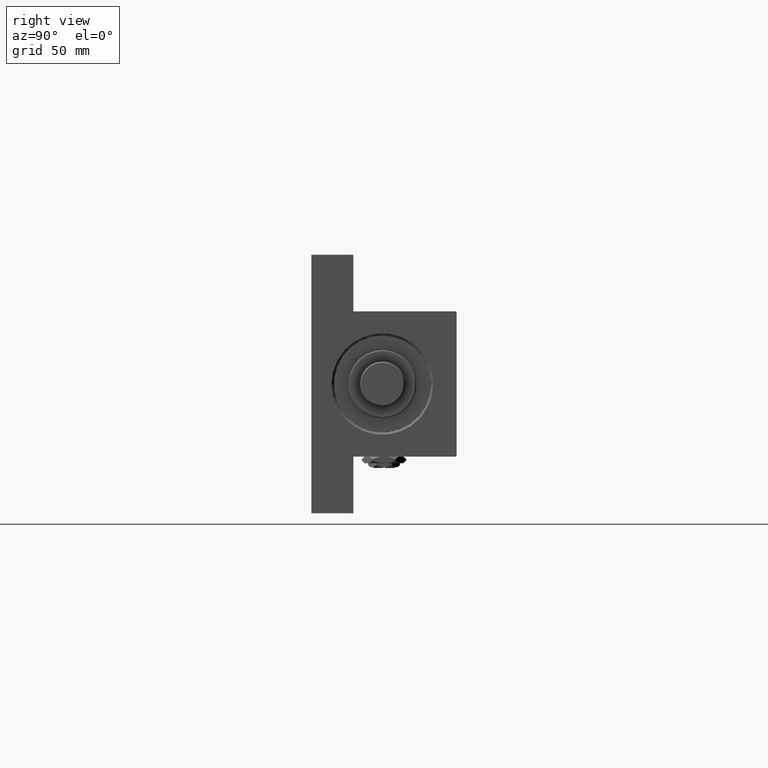
[diagram: clean part render]
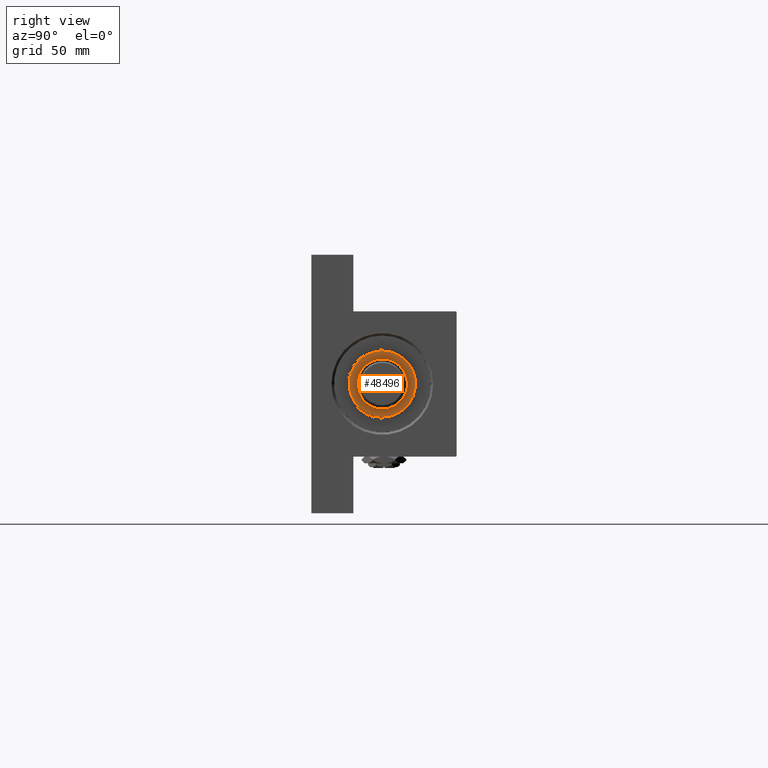
[diagram: same view with one face highlighted and labeled with its STEP entity id]
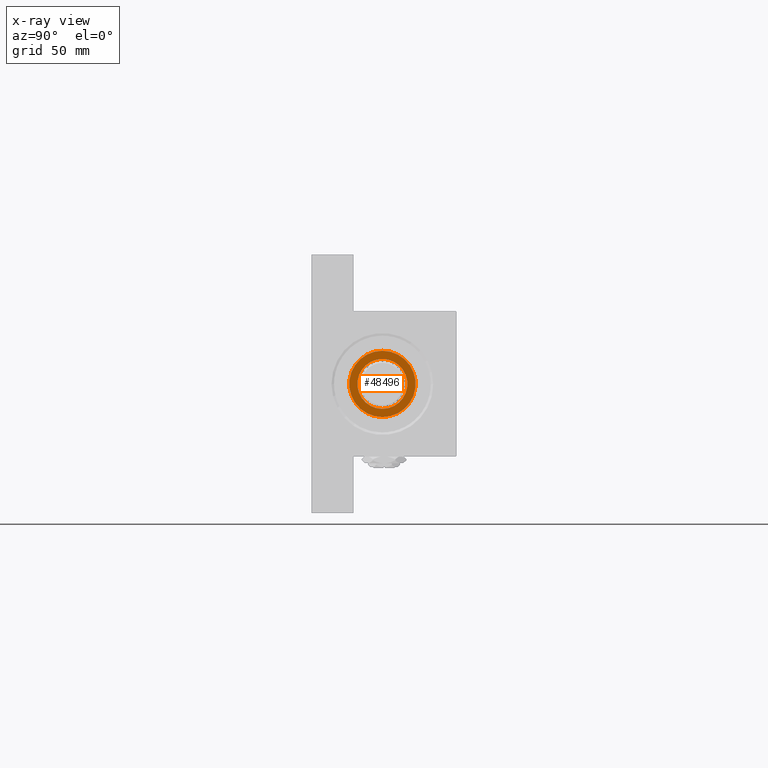
[diagram: x-ray of the same camera — body ghosted, the highlighted face saturated]
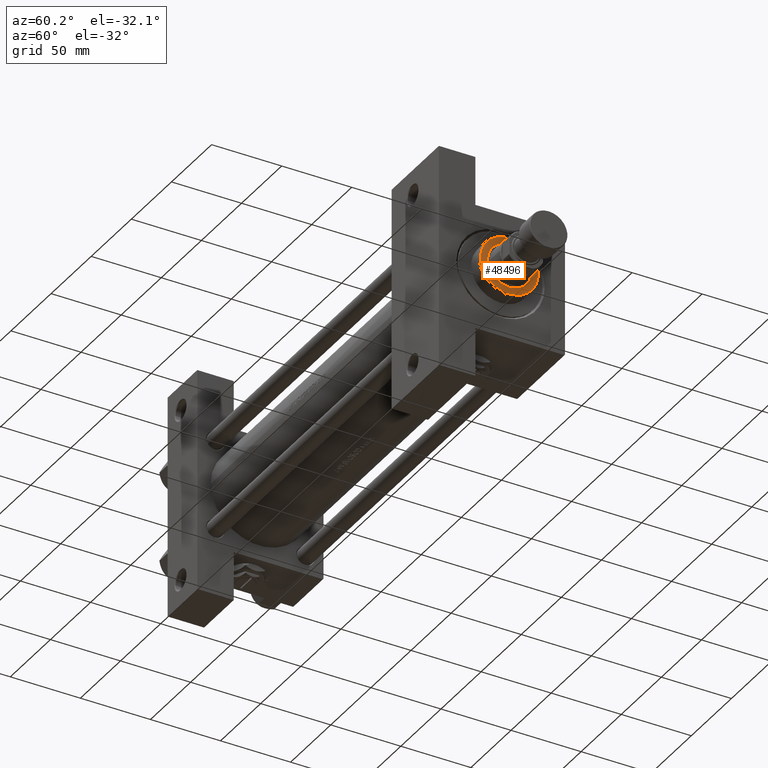
[diagram: same view with one face highlighted and labeled with its STEP entity id]
A machine part, right view. The second image highlights one B-rep face of the part: STEP entity #48496.
The next image is the same camera in x-ray: the body ghosted, the highlighted face saturated — about 0% of this face is hidden behind the body in this view.
A second angle (auxiliary view) of the same face is appended — the face is thin or edge-on in the first view.
In plain terms, the highlighted planar face has unit normal (1, 0, 0).
Its self-contained STEP definition (entity closure, byte-faithful):
#2413 = DIRECTION ( 'NONE',  ( 0.000000000000000000, 0.000000000000000000, 1.000000000000000000 ) ) ;
#4598 = CARTESIAN_POINT ( 'NONE',  ( -15.50000000000000000, 1.898202538678397557E-15, 39.69999999999999574 ) ) ;
#7482 = AXIS2_PLACEMENT_3D ( 'NONE', #21530, #37013, #17487 ) ;
#7998 = CIRCLE ( 'NONE', #43596, 20.50000000000000355 ) ;
#8465 = VERTEX_POINT ( 'NONE', #35496 ) ;
#9046 = DIRECTION ( 'NONE',  ( 0.000000000000000000, 0.000000000000000000, 1.000000000000000000 ) ) ;
#9493 = PLANE ( 'NONE',  #21824 ) ;
#10421 = CIRCLE ( 'NONE', #37134, 15.50000000000000000 ) ;
#13249 = EDGE_CURVE ( 'NONE', #23503, #18032, #10421, .T. ) ;
#13515 = AXIS2_PLACEMENT_3D ( 'NONE', #25245, #9046, #44501 ) ;
#13788 = FACE_BOUND ( 'NONE', #17685, .T. ) ;
#14441 = CARTESIAN_POINT ( 'NONE',  ( 0.000000000000000000, 0.000000000000000000, 39.69999999999999574 ) ) ;
#17487 = DIRECTION ( 'NONE',  ( 1.000000000000000000, 0.000000000000000000, 0.000000000000000000 ) ) ;
#17593 = FACE_OUTER_BOUND ( 'NONE', #23450, .T. ) ;
#17685 = EDGE_LOOP ( 'NONE', ( #31011, #32158 ) ) ;
#18032 = VERTEX_POINT ( 'NONE', #4598 ) ;
#19130 = CARTESIAN_POINT ( 'NONE',  ( -20.50000000000000355, 0.000000000000000000, 39.69999999999999574 ) ) ;
#19812 = VERTEX_POINT ( 'NONE', #19130 ) ;
#20896 = DIRECTION ( 'NONE',  ( 1.000000000000000000, 0.000000000000000000, -0.000000000000000000 ) ) ;
#21323 = EDGE_CURVE ( 'NONE', #19812, #8465, #48729, .T. ) ;
#21530 = CARTESIAN_POINT ( 'NONE',  ( 0.000000000000000000, 0.000000000000000000, 39.69999999999999574 ) ) ;
#21824 = AXIS2_PLACEMENT_3D ( 'NONE', #29258, #44701, #20896 ) ;
#23450 = EDGE_LOOP ( 'NONE', ( #34170, #33572 ) ) ;
#23503 = VERTEX_POINT ( 'NONE', #42690 ) ;
#25245 = CARTESIAN_POINT ( 'NONE',  ( 0.000000000000000000, 0.000000000000000000, 39.69999999999999574 ) ) ;
#29258 = CARTESIAN_POINT ( 'NONE',  ( 0.000000000000000000, 0.000000000000000000, 39.69999999999999574 ) ) ;
#29912 = DIRECTION ( 'NONE',  ( 0.000000000000000000, 0.000000000000000000, 1.000000000000000000 ) ) ;
#31011 = ORIENTED_EDGE ( 'NONE', *, *, #13249, .F. ) ;
#32158 = ORIENTED_EDGE ( 'NONE', *, *, #36322, .F. ) ;
#33572 = ORIENTED_EDGE ( 'NONE', *, *, #46429, .T. ) ;
#34170 = ORIENTED_EDGE ( 'NONE', *, *, #21323, .T. ) ;
#35496 = CARTESIAN_POINT ( 'NONE',  ( 20.50000000000000355, 2.541142108230758269E-15, 39.69999999999999574 ) ) ;
#36322 = EDGE_CURVE ( 'NONE', #18032, #23503, #42650, .T. ) ;
#37013 = DIRECTION ( 'NONE',  ( 0.000000000000000000, 0.000000000000000000, 1.000000000000000000 ) ) ;
#37134 = AXIS2_PLACEMENT_3D ( 'NONE', #14441, #29912, #45355 ) ;
#42650 = CIRCLE ( 'NONE', #13515, 15.50000000000000000 ) ;
#42690 = CARTESIAN_POINT ( 'NONE',  ( 15.50000000000000000, 0.000000000000000000, 39.69999999999999574 ) ) ;
#43596 = AXIS2_PLACEMENT_3D ( 'NONE', #45223, #2413, #48799 ) ;
#44501 = DIRECTION ( 'NONE',  ( 1.000000000000000000, 0.000000000000000000, 0.000000000000000000 ) ) ;
#44701 = DIRECTION ( 'NONE',  ( 0.000000000000000000, 0.000000000000000000, 1.000000000000000000 ) ) ;
#45223 = CARTESIAN_POINT ( 'NONE',  ( 0.000000000000000000, 0.000000000000000000, 39.69999999999999574 ) ) ;
#45355 = DIRECTION ( 'NONE',  ( 1.000000000000000000, 0.000000000000000000, 0.000000000000000000 ) ) ;
#46429 = EDGE_CURVE ( 'NONE', #8465, #19812, #7998, .T. ) ;
#48496 = ADVANCED_FACE ( 'NONE', ( #13788, #17593 ), #9493, .T. ) ;
#48729 = CIRCLE ( 'NONE', #7482, 20.50000000000000355 ) ;
#48799 = DIRECTION ( 'NONE',  ( 1.000000000000000000, 0.000000000000000000, 0.000000000000000000 ) ) ;